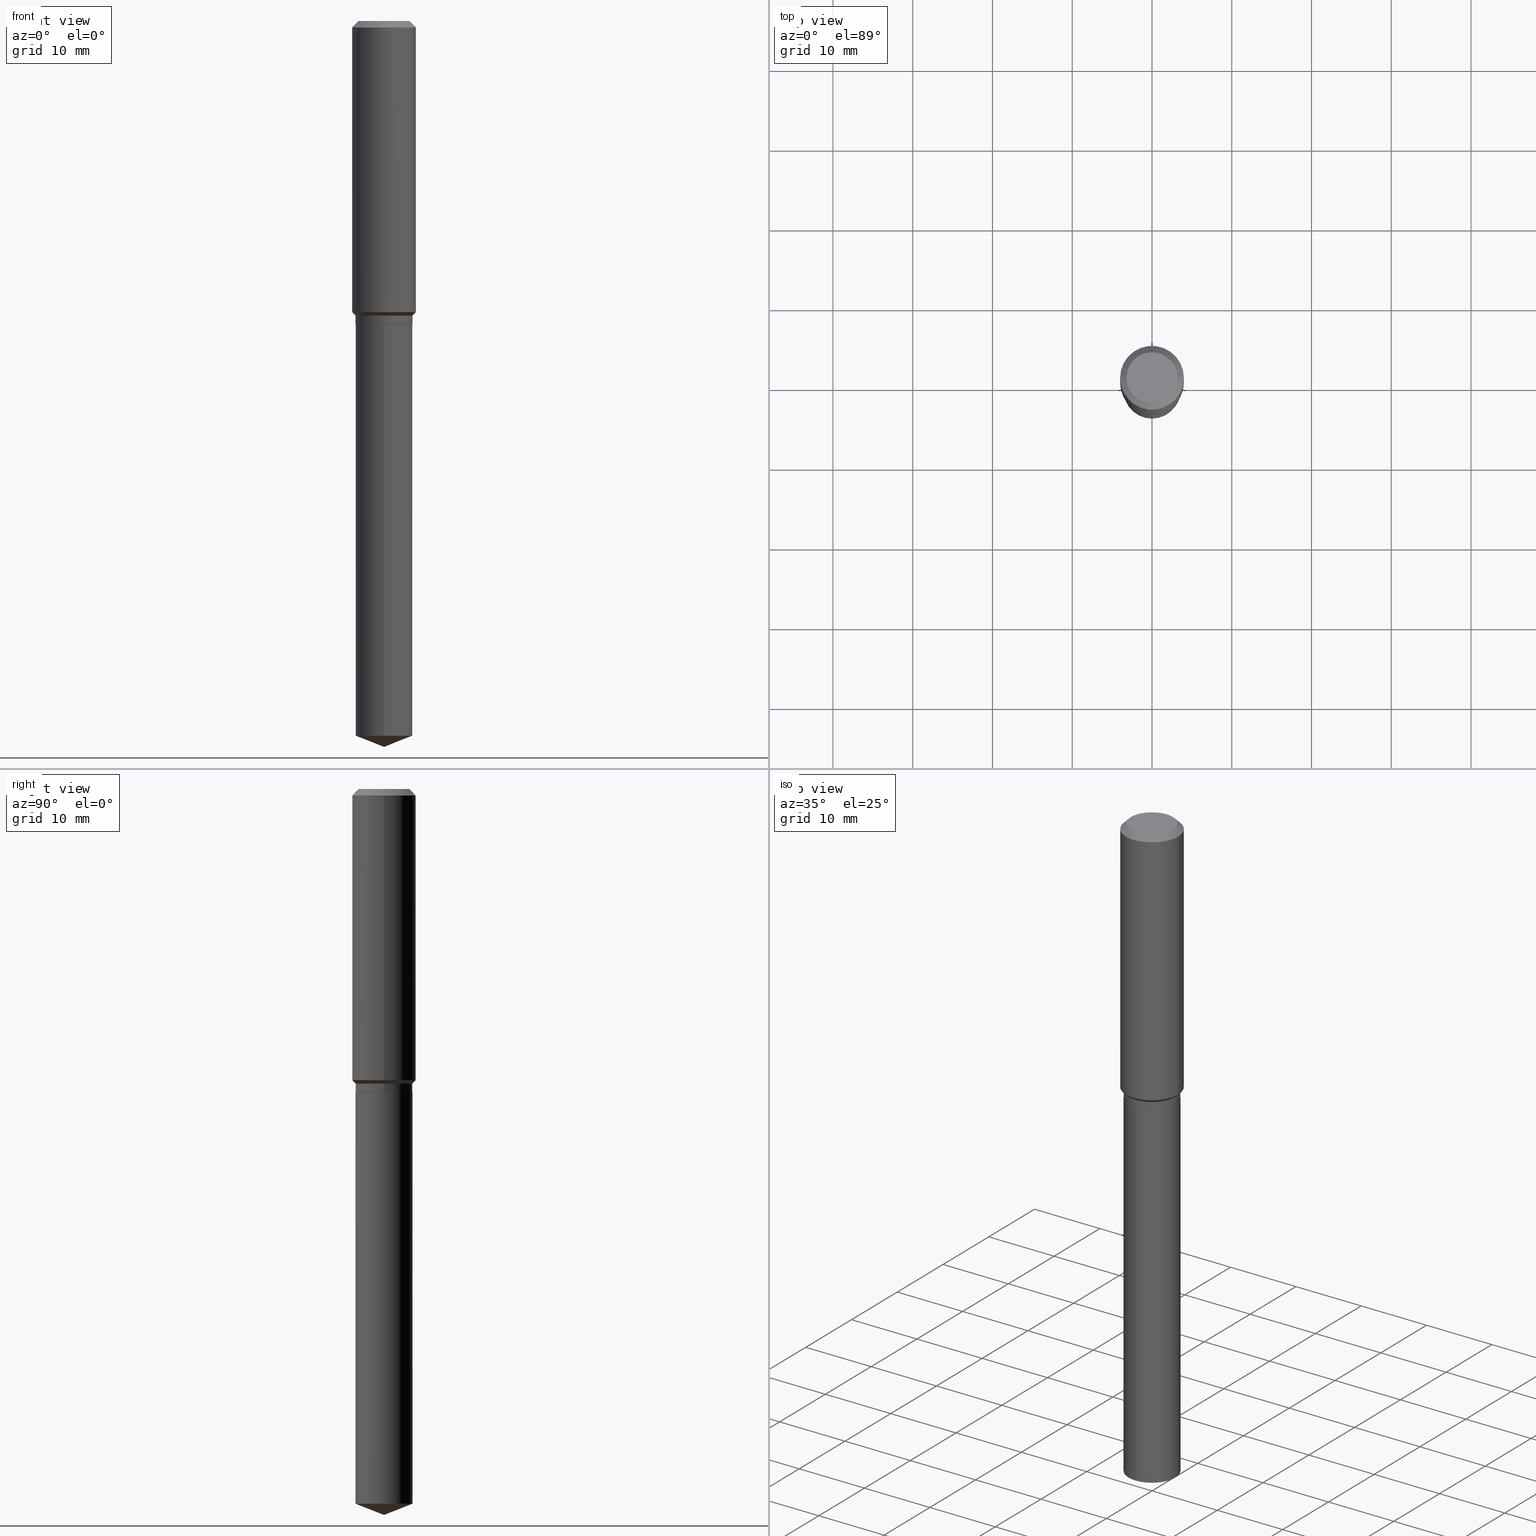
[diagram: canonical four-view strip — front | top / right | iso, engineering-drawing reading convention]
A machine part, canonical four-view strip (front | top / right | iso — engineering-drawing reading convention). The complete STEP part file that produces these views, byte-faithful:
ISO-10303-21;
HEADER;
FILE_DESCRIPTION (( 'STEP AP203' ),
    '1' );
FILE_NAME ('56449.STEP',
    '2024-04-24T17:56:02',
    ( '' ),
    ( '' ),
    'SwSTEP 2.0',
    'SolidWorks 2023',
    '' );
FILE_SCHEMA (( 'CONFIG_CONTROL_DESIGN' ));
ENDSEC;

DATA;
#1 = DIRECTION ( 'NONE',  ( 1.000000000000000000, -6.982962677686265133E-15, 0.000000000000000000 ) ) ;
#2 = EDGE_CURVE ( 'NONE', #156, #122, #186, .T. ) ;
#3 = CARTESIAN_POINT ( 'NONE',  ( 8.762167928049776641E-29, -1.250990145810785612E-14, -3.583000000000000185 ) ) ;
#4 = CONICAL_SURFACE ( 'NONE', #209, 99.94676754583802847, 1.195550537616112852 ) ;
#5 = CALENDAR_DATE ( 2024, 24, 4 ) ;
#6 = FACE_OUTER_BOUND ( 'NONE', #127, .T. ) ;
#7 = EDGE_LOOP ( 'NONE', ( #314, #317, #206 ) ) ;
#8 = COORDINATED_UNIVERSAL_TIME_OFFSET ( 5, 0, .BEHIND. ) ;
#9 = CARTESIAN_POINT ( 'NONE',  ( 0.1575000000000000011, -1.190510096822576026E-15, -0.03150000000000019451 ) ) ;
#10 = ORIENTED_EDGE ( 'NONE', *, *, #55, .F. ) ;
#11 = EDGE_CURVE ( 'NONE', #86, #144, #331, .T. ) ;
#12 = EDGE_CURVE ( 'NONE', #194, #40, #454, .T. ) ;
#13 = FACE_OUTER_BOUND ( 'NONE', #204, .T. ) ;
#14 = VECTOR ( 'NONE', #383, 39.37007874015748143 ) ;
#15 = AXIS2_PLACEMENT_3D ( 'NONE', #169, #92, #434 ) ;
#16 = VERTEX_POINT ( 'NONE', #484 ) ;
#17 = LOCAL_TIME ( 13, 56, 2.000000000000000000, #455 ) ;
#18 = DIRECTION ( 'NONE',  ( -2.445468806185136877E-29, 3.491481338843145188E-15, 1.000000000000000000 ) ) ;
#19 = ORIENTED_EDGE ( 'NONE', *, *, #483, .F. ) ;
#20 = DIRECTION ( 'NONE',  ( -2.445468806185136597E-29, 3.491481338843145583E-15, 1.000000000000000000 ) ) ;
#21 = ORIENTED_EDGE ( 'NONE', *, *, #49, .T. ) ;
#22 = CARTESIAN_POINT ( 'NONE',  ( 3.513894127607422832E-29, -5.016909535783715749E-15, -1.436899999999999844 ) ) ;
#23 = DIRECTION ( 'NONE',  ( -2.445483652818804664E-29, 3.491460077618715012E-15, 1.000000000000000000 ) ) ;
#24 = DIRECTION ( 'NONE',  ( 1.000000000000000000, -6.982962677686265922E-15, 4.876176775795935793E-29 ) ) ;
#25 = PLANE ( 'NONE',  #219 ) ;
#26 = CIRCLE ( 'NONE', #269, 0.1406000000000000028 ) ;
#27 = DATE_AND_TIME ( #249, #328 ) ;
#28 = ORIENTED_EDGE ( 'NONE', *, *, #443, .F. ) ;
#29 = DIRECTION ( 'NONE',  ( 0.7071067811864267805, -2.468850131080992517E-15, 0.7071067811866682540 ) ) ;
#30 = CARTESIAN_POINT ( 'NONE',  ( -0.1406000000000000028, 9.990230864787008809E-16, -6.916022736898397739E-30 ) ) ;
#31 = VECTOR ( 'NONE', #139, 39.37007874015748143 ) ;
#32 = CONICAL_SURFACE ( 'NONE', #96, 99.94676754583802847, 1.195550537616112852 ) ;
#33 = VERTEX_POINT ( 'NONE', #131 ) ;
#34 = CARTESIAN_POINT ( 'NONE',  ( -0.1406000000000000028, -4.150388166114112511E-15, -1.495900000000000230 ) ) ;
#35 = LINE ( 'NONE', #9, #279 ) ;
#36 = CALENDAR_DATE ( 2024, 24, 4 ) ;
#37 = DIRECTION ( 'NONE',  ( -2.445468806185136597E-29, 3.491481338843145583E-15, 1.000000000000000000 ) ) ;
#38 = ORIENTED_EDGE ( 'NONE', *, *, #332, .F. ) ;
#39 = CARTESIAN_POINT ( 'NONE',  ( -8.751673825769712260E-28, 1.249491249005610537E-13, 35.78707874015748303 ) ) ;
#40 = VERTEX_POINT ( 'NONE', #287 ) ;
#41 = CARTESIAN_POINT ( 'NONE',  ( 8.762123495044533825E-29, -1.250996508870033127E-14, -3.583000000000000185 ) ) ;
#42 = ORIENTED_EDGE ( 'NONE', *, *, #272, .F. ) ;
#43 = DIRECTION ( 'NONE',  ( -2.445468806185136597E-29, 3.491481338843145583E-15, 1.000000000000000000 ) ) ;
#44 = AXIS2_PLACEMENT_3D ( 'NONE', #395, #20, #319 ) ;
#45 = ORIENTED_EDGE ( 'NONE', *, *, #441, .F. ) ;
#46 = DIRECTION ( 'NONE',  ( -6.982962677686265133E-15, -1.000000000000000000, 3.885985766236505386E-15 ) ) ;
#47 = ORIENTED_EDGE ( 'NONE', *, *, #443, .T. ) ;
#48 = FACE_OUTER_BOUND ( 'NONE', #7, .T. ) ;
#49 = EDGE_CURVE ( 'NONE', #122, #16, #405, .T. ) ;
#50 = DIRECTION ( 'NONE',  ( 1.000000000000000000, -6.982962677686267499E-15, 0.000000000000000000 ) ) ;
#51 = AXIS2_PLACEMENT_3D ( 'NONE', #274, #93, #236 ) ;
#52 = AXIS2_PLACEMENT_3D ( 'NONE', #324, #295, #99 ) ;
#53 = CYLINDRICAL_SURFACE ( 'NONE', #109, 0.1406000000000000028 ) ;
#54 = ADVANCED_FACE ( 'NONE', ( #107 ), #449, .T. ) ;
#55 = EDGE_CURVE ( 'NONE', #320, #216, #310, .T. ) ;
#56 = DIRECTION ( 'NONE',  ( 6.982962677686265922E-15, 1.000000000000000000, -3.491460077618715012E-15 ) ) ;
#57 = DIRECTION ( 'NONE',  ( 1.000000000000000000, 0.000000000000000000, 0.000000000000000000 ) ) ;
#58 = ORIENTED_EDGE ( 'NONE', *, *, #113, .F. ) ;
#59 = VECTOR ( 'NONE', #183, 39.37007874015748143 ) ;
#60 = CIRCLE ( 'NONE', #254, 0.1575000000000001676 ) ;
#61 = CARTESIAN_POINT ( 'NONE',  ( 3.555222550431951451E-29, -5.075915570410164936E-15, -1.453799999999999981 ) ) ;
#62 = PRODUCT_DEFINITION_FORMATION_WITH_SPECIFIED_SOURCE ( 'ANY', '', #102, .NOT_KNOWN. ) ;
#63 = ORIENTED_EDGE ( 'NONE', *, *, #441, .T. ) ;
#64 = PERSON_AND_ORGANIZATION ( #85, #394 ) ;
#65 = ORIENTED_EDGE ( 'NONE', *, *, #416, .F. ) ;
#66 = EDGE_CURVE ( 'NONE', #86, #306, #325, .T. ) ;
#67 = APPROVAL_DATE_TIME ( #270, #69 ) ;
#68 = ORIENTED_EDGE ( 'NONE', *, *, #143, .T. ) ;
#69 = APPROVAL ( #347, 'UNSPECIFIED' ) ;
#70 = CIRCLE ( 'NONE', #476, 0.1406000000000000028 ) ;
#71 = APPROVAL_DATE_TIME ( #379, #264 ) ;
#72 = AXIS2_PLACEMENT_3D ( 'NONE', #404, #370, #453 ) ;
#73 = FACE_OUTER_BOUND ( 'NONE', #218, .T. ) ;
#74 = CARTESIAN_POINT ( 'NONE',  ( 0.1401000000000000023, -6.202965746588731027E-15, -1.496400000000000396 ) ) ;
#75 = DATE_TIME_ROLE ( 'creation_date' ) ;
#76 = DIRECTION ( 'NONE',  ( 2.445468806185136597E-29, -3.491481338843145583E-15, -1.000000000000000000 ) ) ;
#77 = ORIENTED_EDGE ( 'NONE', *, *, #360, .T. ) ;
#78 = CARTESIAN_POINT ( 'NONE',  ( 3.658176787172346501E-29, -5.222906934775461847E-15, -1.495900000000000230 ) ) ;
#79 = AXIS2_PLACEMENT_3D ( 'NONE', #157, #108, #308 ) ;
#80 = ORIENTED_EDGE ( 'NONE', *, *, #11, .T. ) ;
#81 = CC_DESIGN_PERSON_AND_ORGANIZATION_ASSIGNMENT ( #188, #464, ( #62 ) ) ;
#82 = CYLINDRICAL_SURFACE ( 'NONE', #191, 0.1406000000000000028 ) ;
#83 = ORIENTED_EDGE ( 'NONE', *, *, #153, .F. ) ;
#84 = FACE_OUTER_BOUND ( 'NONE', #358, .T. ) ;
#85 = PERSON ( 'UNSPECIFIED', 'UNSPECIFIED', 'UNSPECIFIED', ('UNSPECIFIED'), ('UNSPECIFIED'), ('UNSPECIFIED') ) ;
#86 = VERTEX_POINT ( 'NONE', #438 ) ;
#87 = CYLINDRICAL_SURFACE ( 'NONE', #44, 0.1406000000000000028 ) ;
#88 = AXIS2_PLACEMENT_3D ( 'NONE', #271, #339, #232 ) ;
#89 = VECTOR ( 'NONE', #18, 39.37007874015748143 ) ;
#90 = ORIENTED_EDGE ( 'NONE', *, *, #12, .T. ) ;
#91 = FACE_OUTER_BOUND ( 'NONE', #292, .T. ) ;
#92 = DIRECTION ( 'NONE',  ( -2.445468806185136597E-29, 3.491481338843145583E-15, 1.000000000000000000 ) ) ;
#93 = DIRECTION ( 'NONE',  ( -2.445468806185136597E-29, 3.491481338843145583E-15, 1.000000000000000000 ) ) ;
#94 = ADVANCED_FACE ( 'NONE', ( #98 ), #248, .F. ) ;
#95 = VECTOR ( 'NONE', #29, 39.37007874015748143 ) ;
#96 = AXIS2_PLACEMENT_3D ( 'NONE', #362, #145, #170 ) ;
#97 = CALENDAR_DATE ( 2024, 24, 4 ) ;
#98 = FACE_OUTER_BOUND ( 'NONE', #473, .T. ) ;
#99 = DIRECTION ( 'NONE',  ( 1.000000000000000000, -6.982962677686265133E-15, 0.000000000000000000 ) ) ;
#100 = ORIENTED_EDGE ( 'NONE', *, *, #124, .T. ) ;
#101 = DIRECTION ( 'NONE',  ( 1.000000000000000000, -6.982962677686266711E-15, 4.876176775795936353E-29 ) ) ;
#102 = PRODUCT ( '56449', '56449', '', ( #448 ) ) ;
#103 = DIRECTION ( 'NONE',  ( -2.438088387897960049E-29, 3.491481338843145188E-15, 1.000000000000000000 ) ) ;
#104 = AXIS2_PLACEMENT_3D ( 'NONE', #288, #212, #57 ) ;
#105 = ORIENTED_EDGE ( 'NONE', *, *, #323, .T. ) ;
#106 = DIRECTION ( 'NONE',  ( -2.445468806185136597E-29, 3.491481338843145583E-15, 1.000000000000000000 ) ) ;
#107 = FACE_OUTER_BOUND ( 'NONE', #482, .T. ) ;
#108 = DIRECTION ( 'NONE',  ( 2.445468806185136597E-29, -3.491481338843145583E-15, -1.000000000000000000 ) ) ;
#109 = AXIS2_PLACEMENT_3D ( 'NONE', #163, #205, #469 ) ;
#110 = DIRECTION ( 'NONE',  ( -1.000000000000000000, 6.982962677686265922E-15, -4.876176775795935793E-29 ) ) ;
#111 = DIRECTION ( 'NONE',  ( -6.982962677686265133E-15, -1.000000000000000000, 3.885985766236505386E-15 ) ) ;
#112 = ADVANCED_FACE ( 'NONE', ( #365 ), #25, .F. ) ;
#113 = EDGE_CURVE ( 'NONE', #306, #376, #426, .T. ) ;
#114 = PERSON_AND_ORGANIZATION ( #85, #394 ) ;
#115 = CARTESIAN_POINT ( 'NONE',  ( -4.719860820353100843E-47, 6.738710358733633822E-33, 1.930043355456229866E-18 ) ) ;
#116 = EDGE_LOOP ( 'NONE', ( #446, #141, #38 ) ) ;
#117 = PRODUCT_RELATED_PRODUCT_CATEGORY ( 'detail', '', ( #102 ) ) ;
#118 = MANIFOLD_SOLID_BREP ( 'Body-Move/Copy2[2]', #120 ) ;
#119 = COORDINATED_UNIVERSAL_TIME_OFFSET ( 5, 0, .BEHIND. ) ;
#120 = CLOSED_SHELL ( 'NONE', ( #415, #240, #403, #490, #421, #54, #488, #447, #171, #112, #470, #296 ) ) ;
#121 = CARTESIAN_POINT ( 'NONE',  ( -0.1401000000000000023, -4.226533075470872562E-15, -1.496400000000000396 ) ) ;
#122 = VERTEX_POINT ( 'NONE', #34 ) ;
#123 = DIRECTION ( 'NONE',  ( 1.000000000000000000, -6.982962677686269077E-15, 0.000000000000000000 ) ) ;
#124 = EDGE_CURVE ( 'NONE', #463, #16, #70, .T. ) ;
#125 = EDGE_LOOP ( 'NONE', ( #65, #179, #47, #45 ) ) ;
#126 = FACE_OUTER_BOUND ( 'NONE', #258, .T. ) ;
#127 = EDGE_LOOP ( 'NONE', ( #197, #451, #309, #396 ) ) ;
#128 = CARTESIAN_POINT ( 'NONE',  ( 3.659399521575439863E-29, -5.224652675444884140E-15, -1.496400000000000396 ) ) ;
#129 = AXIS2_PLACEMENT_3D ( 'NONE', #252, #487, #181 ) ;
#130 = AXIS2_PLACEMENT_3D ( 'NONE', #198, #76, #266 ) ;
#131 = CARTESIAN_POINT ( 'NONE',  ( -0.1575000000000000011, -1.444340790156479211E-15, -0.03150000000000019451 ) ) ;
#132 = CARTESIAN_POINT ( 'NONE',  ( 3.659399521575439863E-29, -5.224652675444884140E-15, -1.496400000000000396 ) ) ;
#133 = CARTESIAN_POINT ( 'NONE',  ( 3.658176787172346501E-29, -5.222906934775461847E-15, -1.495900000000000230 ) ) ;
#134 = APPLICATION_PROTOCOL_DEFINITION ( 'international standard', 'config_control_design', 1994, #351 ) ;
#135 = CIRCLE ( 'NONE', #88, 0.1406000000000000028 ) ;
#136 = VECTOR ( 'NONE', #152, 39.37007874015748143 ) ;
#137 = SECURITY_CLASSIFICATION ( '', '', #147 ) ;
#138 =( CONVERSION_BASED_UNIT ( 'INCH', #480 ) LENGTH_UNIT ( ) NAMED_UNIT ( #406 ) );
#139 = DIRECTION ( 'NONE',  ( -0.7071067811864267805, 7.493145998869918709E-15, 0.7071067811866682540 ) ) ;
#140 = FACE_OUTER_BOUND ( 'NONE', #371, .T. ) ;
#141 = ORIENTED_EDGE ( 'NONE', *, *, #222, .T. ) ;
#142 = PLANE ( 'NONE',  #185 ) ;
#143 = EDGE_CURVE ( 'NONE', #376, #144, #135, .T. ) ;
#144 = VERTEX_POINT ( 'NONE', #344 ) ;
#145 = DIRECTION ( 'NONE',  ( -2.445483652818804664E-29, 3.491460077618715012E-15, 1.000000000000000000 ) ) ;
#146 = CARTESIAN_POINT ( 'NONE',  ( 8.626705502539222610E-29, -1.231656290181708132E-14, -3.527616187128538527 ) ) ;
#147 = SECURITY_CLASSIFICATION_LEVEL ( 'unclassified' ) ;
#148 = DIRECTION ( 'NONE',  ( 1.000000000000000000, -6.982962677686267499E-15, 0.000000000000000000 ) ) ;
#149 = EDGE_CURVE ( 'NONE', #16, #463, #151, .T. ) ;
#150 = CARTESIAN_POINT ( 'NONE',  ( 3.659399521575439863E-29, -5.224652675444884140E-15, -1.496400000000000396 ) ) ;
#151 = CIRCLE ( 'NONE', #408, 0.1406000000000000028 ) ;
#152 = DIRECTION ( 'NONE',  ( -0.7071067811865451302, 2.468850131082231817E-15, -0.7071067811865499042 ) ) ;
#153 = EDGE_CURVE ( 'NONE', #40, #122, #384, .T. ) ;
#154 = PERSON_AND_ORGANIZATION ( #85, #394 ) ;
#155 = DIRECTION ( 'NONE',  ( 1.000000000000000000, -6.982962677686265133E-15, 0.000000000000000000 ) ) ;
#156 = VERTEX_POINT ( 'NONE', #121 ) ;
#157 = CARTESIAN_POINT ( 'NONE',  ( 7.703226739483228723E-31, -1.099816621735597661E-16, -0.03150000000000019451 ) ) ;
#158 = EDGE_LOOP ( 'NONE', ( #231, #77, #239, #374 ) ) ;
#159 = CLOSED_SHELL ( 'NONE', ( #345, #457, #244, #175, #94 ) ) ;
#160 = LINE ( 'NONE', #276, #436 ) ;
#161 = VECTOR ( 'NONE', #226, 39.37007874015748143 ) ;
#162 = ORIENTED_EDGE ( 'NONE', *, *, #259, .T. ) ;
#163 = CARTESIAN_POINT ( 'NONE',  ( 3.659399521575438742E-29, -5.224652675444883351E-15, -1.496400000000000174 ) ) ;
#164 = ORIENTED_EDGE ( 'NONE', *, *, #153, .T. ) ;
#165 = DIRECTION ( 'NONE',  ( -2.445468806185136597E-29, 3.491481338843145583E-15, 1.000000000000000000 ) ) ;
#166 = EDGE_LOOP ( 'NONE', ( #10, #162, #227, #486 ) ) ;
#167 = FACE_OUTER_BOUND ( 'NONE', #385, .T. ) ;
#168 = AXIS2_PLACEMENT_3D ( 'NONE', #440, #281, #46 ) ;
#169 = CARTESIAN_POINT ( 'NONE',  ( 0.000000000000000000, 0.000000000000000000, 0.000000000000000000 ) ) ;
#170 = DIRECTION ( 'NONE',  ( -6.982962677686265922E-15, -1.000000000000000000, 3.498627837350072459E-15 ) ) ;
#171 = ADVANCED_FACE ( 'NONE', ( #6 ), #419, .T. ) ;
#172 = CARTESIAN_POINT ( 'NONE',  ( 7.703226739483228723E-31, -1.099816621735597661E-16, -0.03150000000000019451 ) ) ;
#173 = EDGE_CURVE ( 'NONE', #235, #435, #353, .T. ) ;
#174 = DIRECTION ( 'NONE',  ( -2.445483652818804664E-29, 3.491460077618715012E-15, 1.000000000000000000 ) ) ;
#175 = ADVANCED_FACE ( 'NONE', ( #73 ), #82, .T. ) ;
#176 = AXIS2_PLACEMENT_3D ( 'NONE', #146, #174, #297 ) ;
#177 = CIRCLE ( 'NONE', #237, 0.1401000000000000023 ) ;
#178 = APPROVAL_DATE_TIME ( #27, #267 ) ;
#179 = ORIENTED_EDGE ( 'NONE', *, *, #149, .T. ) ;
#180 = PERSON_AND_ORGANIZATION_ROLE ( 'design_owner' ) ;
#181 = DIRECTION ( 'NONE',  ( 1.000000000000000000, -6.982962677686265922E-15, 4.876281427513067258E-29 ) ) ;
#182 = PERSON_AND_ORGANIZATION_ROLE ( 'creator' ) ;
#183 = DIRECTION ( 'NONE',  ( -2.445468806185136877E-29, 3.491481338843145188E-15, 1.000000000000000000 ) ) ;
#184 = EDGE_CURVE ( 'NONE', #235, #433, #465, .T. ) ;
#185 = AXIS2_PLACEMENT_3D ( 'NONE', #291, #103, #24 ) ;
#186 = LINE ( 'NONE', #217, #31 ) ;
#187 = CARTESIAN_POINT ( 'NONE',  ( 3.555222550431951451E-29, -5.075915570410164936E-15, -1.453799999999999981 ) ) ;
#188 = PERSON_AND_ORGANIZATION ( #85, #394 ) ;
#189 = DIRECTION ( 'NONE',  ( -2.445468806185136597E-29, 3.491481338843145583E-15, 1.000000000000000000 ) ) ;
#190 = SHAPE_DEFINITION_REPRESENTATION ( #214, #193 ) ;
#191 = AXIS2_PLACEMENT_3D ( 'NONE', #381, #348, #111 ) ;
#192 = DIRECTION ( 'NONE',  ( 1.000000000000000000, -6.982962677686265133E-15, 0.000000000000000000 ) ) ;
#193 = ADVANCED_BREP_SHAPE_REPRESENTATION ( '56449', ( #452, #118, #104 ), #312 ) ;
#194 = VERTEX_POINT ( 'NONE', #74 ) ;
#195 = APPROVAL_ROLE ( '' ) ;
#196 = DIRECTION ( 'NONE',  ( -2.445483652818804664E-29, 3.491460077618715012E-15, 1.000000000000000000 ) ) ;
#197 = ORIENTED_EDGE ( 'NONE', *, *, #259, .F. ) ;
#198 = CARTESIAN_POINT ( 'NONE',  ( 7.703226739483228723E-31, -1.099816621735597661E-16, -0.03150000000000019451 ) ) ;
#199 = ORIENTED_EDGE ( 'NONE', *, *, #55, .T. ) ;
#200 = EDGE_CURVE ( 'NONE', #194, #156, #177, .T. ) ;
#201 = DIRECTION ( 'NONE',  ( 1.000000000000000000, -6.982962677686265133E-15, 0.000000000000000000 ) ) ;
#202 = CIRCLE ( 'NONE', #51, 0.1260000000000000009 ) ;
#203 = CONICAL_SURFACE ( 'NONE', #52, 0.1406000000000000028, 0.7853981633974523868 ) ;
#204 = EDGE_LOOP ( 'NONE', ( #388, #265, #83, #367 ) ) ;
#205 = DIRECTION ( 'NONE',  ( -2.445483652818804664E-29, 3.491460077618715012E-15, 1.000000000000000000 ) ) ;
#206 = ORIENTED_EDGE ( 'NONE', *, *, #66, .F. ) ;
#207 = LINE ( 'NONE', #234, #215 ) ;
#208 = DIRECTION ( 'NONE',  ( 1.000000000000000000, -6.982962677686267499E-15, 4.876176775795936353E-29 ) ) ;
#209 = AXIS2_PLACEMENT_3D ( 'NONE', #39, #196, #223 ) ;
#210 = FACE_OUTER_BOUND ( 'NONE', #125, .T. ) ;
#211 = ORIENTED_EDGE ( 'NONE', *, *, #149, .F. ) ;
#212 = DIRECTION ( 'NONE',  ( 0.000000000000000000, 0.000000000000000000, 1.000000000000000000 ) ) ;
#213 = ORIENTED_EDGE ( 'NONE', *, *, #143, .F. ) ;
#214 = PRODUCT_DEFINITION_SHAPE ( 'NONE', 'NONE',  #444 ) ;
#215 = VECTOR ( 'NONE', #437, 39.37007874015748854 ) ;
#216 = VERTEX_POINT ( 'NONE', #458 ) ;
#217 = CARTESIAN_POINT ( 'NONE',  ( -0.1401000000000000023, -4.229182302644984552E-15, -1.496400000000000396 ) ) ;
#218 = EDGE_LOOP ( 'NONE', ( #58, #471, #80, #213 ) ) ;
#219 = AXIS2_PLACEMENT_3D ( 'NONE', #115, #387, #110 ) ;
#220 = AXIS2_PLACEMENT_3D ( 'NONE', #172, #333, #286 ) ;
#221 = LINE ( 'NONE', #380, #136 ) ;
#222 = EDGE_CURVE ( 'NONE', #268, #86, #420, .T. ) ;
#223 = DIRECTION ( 'NONE',  ( -6.982962677686265922E-15, -1.000000000000000000, 3.498627837350072459E-15 ) ) ;
#224 = PERSON_AND_ORGANIZATION_ROLE ( 'creator' ) ;
#225 = APPLICATION_CONTEXT ( 'configuration controlled 3d designs of mechanical parts and assemblies' ) ;
#226 = DIRECTION ( 'NONE',  ( -2.445468806185136877E-29, 3.491481338843145188E-15, 1.000000000000000000 ) ) ;
#227 = ORIENTED_EDGE ( 'NONE', *, *, #485, .T. ) ;
#228 = CIRCLE ( 'NONE', #477, 0.1406000000000000028 ) ;
#229 = FACE_OUTER_BOUND ( 'NONE', #116, .T. ) ;
#230 = LOCAL_TIME ( 13, 56, 2.000000000000000000, #119 ) ;
#231 = ORIENTED_EDGE ( 'NONE', *, *, #173, .T. ) ;
#232 = DIRECTION ( 'NONE',  ( -6.982962677686265133E-15, -1.000000000000000000, 3.885985766236505386E-15 ) ) ;
#233 = ORIENTED_EDGE ( 'NONE', *, *, #354, .T. ) ;
#234 = CARTESIAN_POINT ( 'NONE',  ( 0.1406000000000000028, -6.057720122892853253E-15, -1.453799999999999981 ) ) ;
#235 = VERTEX_POINT ( 'NONE', #341 ) ;
#236 = DIRECTION ( 'NONE',  ( 1.000000000000000000, -6.982962677686265922E-15, 4.876281427513067258E-29 ) ) ;
#237 = AXIS2_PLACEMENT_3D ( 'NONE', #150, #299, #460 ) ;
#238 = LOCAL_TIME ( 13, 56, 2.000000000000000000, #442 ) ;
#239 = ORIENTED_EDGE ( 'NONE', *, *, #485, .F. ) ;
#240 = ADVANCED_FACE ( 'NONE', ( #423 ), #293, .T. ) ;
#241 = CARTESIAN_POINT ( 'NONE',  ( 0.000000000000000000, 0.000000000000000000, 0.000000000000000000 ) ) ;
#242 = CC_DESIGN_DATE_AND_TIME_ASSIGNMENT ( #247, #75, ( #444 ) ) ;
#243 = DIRECTION ( 'NONE',  ( -0.7071067811865503483, 7.493145998870363626E-15, 0.7071067811865445751 ) ) ;
#244 = ADVANCED_FACE ( 'NONE', ( #229 ), #4, .T. ) ;
#245 = DIRECTION ( 'NONE',  ( -6.982962677686265133E-15, -1.000000000000000000, 3.885985766236505386E-15 ) ) ;
#246 = AXIS2_PLACEMENT_3D ( 'NONE', #61, #106, #450 ) ;
#247 = DATE_AND_TIME ( #97, #238 ) ;
#248 = PLANE ( 'NONE',  #300 ) ;
#249 = CALENDAR_DATE ( 2024, 24, 4 ) ;
#250 = CARTESIAN_POINT ( 'NONE',  ( 0.1401000000000000023, -6.202965746588731027E-15, -1.496400000000000396 ) ) ;
#251 = PERSON_AND_ORGANIZATION ( #85, #394 ) ;
#252 = CARTESIAN_POINT ( 'NONE',  ( -9.439721640706201686E-47, 1.347742071746726764E-32, 3.860086710912459732E-18 ) ) ;
#253 = AXIS2_PLACEMENT_3D ( 'NONE', #78, #189, #155 ) ;
#254 = AXIS2_PLACEMENT_3D ( 'NONE', #22, #313, #50 ) ;
#255 = PERSON_AND_ORGANIZATION ( #85, #394 ) ;
#256 = ORIENTED_EDGE ( 'NONE', *, *, #272, .T. ) ;
#257 =( LENGTH_UNIT ( ) NAMED_UNIT ( * ) SI_UNIT ( $, .METRE. ) );
#258 = EDGE_LOOP ( 'NONE', ( #164, #21, #277, #42 ) ) ;
#259 = EDGE_CURVE ( 'NONE', #320, #433, #35, .T. ) ;
#260 = CARTESIAN_POINT ( 'NONE',  ( 0.1406000000000000028, -9.818045524826891058E-16, 6.855904546769086274E-30 ) ) ;
#261 = CONICAL_SURFACE ( 'NONE', #327, 0.1401000000000000023, 0.7853981633972775267 ) ;
#262 = CARTESIAN_POINT ( 'NONE',  ( 0.1575000000000000844, -1.099816621735587677E-15, 7.679978421878603638E-30 ) ) ;
#263 = DIRECTION ( 'NONE',  ( -2.445468806185136597E-29, 3.491481338843145583E-15, 1.000000000000000000 ) ) ;
#264 = APPROVAL ( #302, 'UNSPECIFIED' ) ;
#265 = ORIENTED_EDGE ( 'NONE', *, *, #2, .T. ) ;
#266 = DIRECTION ( 'NONE',  ( -1.000000000000000000, 6.982962677686265922E-15, 0.000000000000000000 ) ) ;
#267 = APPROVAL ( #412, 'UNSPECIFIED' ) ;
#268 = VERTEX_POINT ( 'NONE', #3 ) ;
#269 = AXIS2_PLACEMENT_3D ( 'NONE', #432, #23, #245 ) ;
#270 = DATE_AND_TIME ( #5, #17 ) ;
#271 = CARTESIAN_POINT ( 'NONE',  ( 3.659399521575438742E-29, -5.224652675444883351E-15, -1.496400000000000174 ) ) ;
#272 = EDGE_CURVE ( 'NONE', #40, #463, #456, .T. ) ;
#273 = ORIENTED_EDGE ( 'NONE', *, *, #49, .F. ) ;
#274 = CARTESIAN_POINT ( 'NONE',  ( -9.439721640706201686E-47, 1.347742071746726764E-32, 3.860086710912459732E-18 ) ) ;
#275 = ORIENTED_EDGE ( 'NONE', *, *, #11, .F. ) ;
#276 = CARTESIAN_POINT ( 'NONE',  ( -0.1406000000000000028, -4.076892483931463661E-15, -1.453799999999999981 ) ) ;
#277 = ORIENTED_EDGE ( 'NONE', *, *, #124, .F. ) ;
#278 = CARTESIAN_POINT ( 'NONE',  ( 0.1575000000000000011, -1.209798283909146741E-15, -0.03150000000000019451 ) ) ;
#279 = VECTOR ( 'NONE', #298, 39.37007874015748143 ) ;
#280 = CARTESIAN_POINT ( 'NONE',  ( 0.000000000000000000, 0.000000000000000000, 0.000000000000000000 ) ) ;
#281 = DIRECTION ( 'NONE',  ( -2.445483652818804664E-29, 3.491460077618715012E-15, 1.000000000000000000 ) ) ;
#282 = EDGE_CURVE ( 'NONE', #216, #33, #221, .T. ) ;
#283 = CARTESIAN_POINT ( 'NONE',  ( 0.1260000000000000009, -1.027466422270894443E-15, 3.860086710919128072E-18 ) ) ;
#284 = APPROVAL_ROLE ( '' ) ;
#285 = CIRCLE ( 'NONE', #72, 0.1575000000000000011 ) ;
#286 = DIRECTION ( 'NONE',  ( 1.000000000000000000, -6.982962677686265922E-15, 0.000000000000000000 ) ) ;
#287 = CARTESIAN_POINT ( 'NONE',  ( 0.1406000000000000028, -6.204711487258150953E-15, -1.495900000000000230 ) ) ;
#288 = CARTESIAN_POINT ( 'NONE',  ( 0.000000000000000000, 0.000000000000000000, 0.000000000000000000 ) ) ;
#289 = DIRECTION ( 'NONE',  ( -2.445483652818804384E-29, 3.491460077618715012E-15, 1.000000000000000000 ) ) ;
#290 = EDGE_CURVE ( 'NONE', #268, #306, #303, .T. ) ;
#291 = CARTESIAN_POINT ( 'NONE',  ( 1.621861059190474669E-29, -8.142523723067441994E-15, -1.496400000000000396 ) ) ;
#292 = EDGE_LOOP ( 'NONE', ( #392, #63, #413, #19 ) ) ;
#293 = CONICAL_SURFACE ( 'NONE', #130, 0.1575000000000000011, 0.7853981633974449483 ) ;
#294 = CC_DESIGN_APPROVAL ( #69, ( #62 ) ) ;
#295 = DIRECTION ( 'NONE',  ( -2.445468806185136597E-29, 3.491481338843145583E-15, 1.000000000000000000 ) ) ;
#296 = ADVANCED_FACE ( 'NONE', ( #84 ), #261, .T. ) ;
#297 = DIRECTION ( 'NONE',  ( -6.982962677686265133E-15, -1.000000000000000000, 3.885985766236505386E-15 ) ) ;
#298 = DIRECTION ( 'NONE',  ( 0.7071067811865451302, -7.319954787623248157E-15, -0.7071067811865499042 ) ) ;
#299 = DIRECTION ( 'NONE',  ( -2.445468806185136597E-29, 3.491481338843145583E-15, 1.000000000000000000 ) ) ;
#300 = AXIS2_PLACEMENT_3D ( 'NONE', #402, #326, #56 ) ;
#301 = VECTOR ( 'NONE', #462, 39.37007874015748854 ) ;
#302 = APPROVAL_STATUS ( 'not_yet_approved' ) ;
#303 = LINE ( 'NONE', #439, #411 ) ;
#304 = PERSON_AND_ORGANIZATION ( #85, #394 ) ;
#305 = CARTESIAN_POINT ( 'NONE',  ( 3.513894127607422832E-29, -5.016909535783715749E-15, -1.436899999999999844 ) ) ;
#306 = VERTEX_POINT ( 'NONE', #400 ) ;
#307 = PERSON_AND_ORGANIZATION_ROLE ( 'classification_officer' ) ;
#308 = DIRECTION ( 'NONE',  ( -1.000000000000000000, 6.982962677686265922E-15, 0.000000000000000000 ) ) ;
#309 = ORIENTED_EDGE ( 'NONE', *, *, #282, .T. ) ;
#310 = CIRCLE ( 'NONE', #129, 0.1260000000000000009 ) ;
#311 = AXIS2_PLACEMENT_3D ( 'NONE', #478, #43, #472 ) ;
#312 =( GEOMETRIC_REPRESENTATION_CONTEXT ( 3 ) GLOBAL_UNCERTAINTY_ASSIGNED_CONTEXT ( ( #427 ) ) GLOBAL_UNIT_ASSIGNED_CONTEXT ( ( #138, #373, #364 ) ) REPRESENTATION_CONTEXT ( 'NONE', 'WORKASPACE' ) );
#313 = DIRECTION ( 'NONE',  ( -2.445468806185136597E-29, 3.491481338843145583E-15, 1.000000000000000000 ) ) ;
#314 = ORIENTED_EDGE ( 'NONE', *, *, #222, .F. ) ;
#315 = CYLINDRICAL_SURFACE ( 'NONE', #15, 0.1575000000000000844 ) ;
#316 = EDGE_CURVE ( 'NONE', #122, #40, #228, .T. ) ;
#317 = ORIENTED_EDGE ( 'NONE', *, *, #290, .T. ) ;
#318 = CC_DESIGN_PERSON_AND_ORGANIZATION_ASSIGNMENT ( #255, #180, ( #102 ) ) ;
#319 = DIRECTION ( 'NONE',  ( 1.000000000000000000, -6.982962677686266711E-15, 4.876176775795936353E-29 ) ) ;
#320 = VERTEX_POINT ( 'NONE', #283 ) ;
#321 = LINE ( 'NONE', #357, #89 ) ;
#322 = DIRECTION ( 'NONE',  ( -2.445468806185136597E-29, 3.491481338843145583E-15, 1.000000000000000000 ) ) ;
#323 = EDGE_CURVE ( 'NONE', #156, #194, #343, .T. ) ;
#324 = CARTESIAN_POINT ( 'NONE',  ( 3.555222550431951451E-29, -5.075915570410164936E-15, -1.453799999999999981 ) ) ;
#325 = CIRCLE ( 'NONE', #176, 0.1406000000000000028 ) ;
#326 = DIRECTION ( 'NONE',  ( 2.445483652818804384E-29, -3.491460077618715012E-15, -1.000000000000000000 ) ) ;
#327 = AXIS2_PLACEMENT_3D ( 'NONE', #128, #391, #123 ) ;
#328 = LOCAL_TIME ( 13, 56, 2.000000000000000000, #445 ) ;
#329 = CARTESIAN_POINT ( 'NONE',  ( -9.818045524826524238E-16, -0.1406000000000052208, -1.496399999999999730 ) ) ;
#330 = CARTESIAN_POINT ( 'NONE',  ( 0.1406000000000000028, -6.057720122892853253E-15, -1.453799999999999981 ) ) ;
#331 = LINE ( 'NONE', #329, #342 ) ;
#332 = EDGE_CURVE ( 'NONE', #306, #86, #459, .T. ) ;
#333 = DIRECTION ( 'NONE',  ( -2.445468806185136597E-29, 3.491481338843145583E-15, 1.000000000000000000 ) ) ;
#334 = DIRECTION ( 'NONE',  ( -2.445468806185136597E-29, 3.491481338843145583E-15, 1.000000000000000000 ) ) ;
#335 = CONICAL_SURFACE ( 'NONE', #311, 0.1401000000000000023, 0.7853981633972775267 ) ;
#336 = CONICAL_SURFACE ( 'NONE', #246, 0.1406000000000000028, 0.7853981633974523868 ) ;
#337 = CALENDAR_DATE ( 2024, 24, 4 ) ;
#338 = ORIENTED_EDGE ( 'NONE', *, *, #200, .F. ) ;
#339 = DIRECTION ( 'NONE',  ( -2.445483652818804664E-29, 3.491460077618715012E-15, 1.000000000000000000 ) ) ;
#340 = DATE_AND_TIME ( #337, #230 ) ;
#341 = CARTESIAN_POINT ( 'NONE',  ( 0.1575000000000001676, -6.116726157519303229E-15, -1.436899999999999844 ) ) ;
#342 = VECTOR ( 'NONE', #289, 39.37007874015748143 ) ;
#343 = CIRCLE ( 'NONE', #368, 0.1401000000000000023 ) ;
#344 = CARTESIAN_POINT ( 'NONE',  ( -9.818045524826524238E-16, -0.1406000000000052208, -1.496399999999999730 ) ) ;
#345 = ADVANCED_FACE ( 'NONE', ( #167 ), #53, .T. ) ;
#346 = ORIENTED_EDGE ( 'NONE', *, *, #316, .T. ) ;
#347 = APPROVAL_STATUS ( 'not_yet_approved' ) ;
#348 = DIRECTION ( 'NONE',  ( -2.445483652818804664E-29, 3.491460077618715012E-15, 1.000000000000000000 ) ) ;
#349 = ORIENTED_EDGE ( 'NONE', *, *, #113, .T. ) ;
#350 = FACE_OUTER_BOUND ( 'NONE', #158, .T. ) ;
#351 = APPLICATION_CONTEXT ( 'configuration controlled 3d designs of mechanical parts and assemblies' ) ;
#352 = ORIENTED_EDGE ( 'NONE', *, *, #2, .F. ) ;
#353 = CIRCLE ( 'NONE', #393, 0.1575000000000001676 ) ;
#354 = EDGE_CURVE ( 'NONE', #144, #376, #26, .T. ) ;
#355 = CARTESIAN_POINT ( 'NONE',  ( 9.990230864787874584E-16, 0.1405999999999947847, -1.496400000000000841 ) ) ;
#356 = ORIENTED_EDGE ( 'NONE', *, *, #372, .T. ) ;
#357 = CARTESIAN_POINT ( 'NONE',  ( -0.1575000000000000844, 1.119104808822158392E-15, -7.747322767151481189E-30 ) ) ;
#358 = EDGE_LOOP ( 'NONE', ( #352, #105, #90, #475 ) ) ;
#359 = CYLINDRICAL_SURFACE ( 'NONE', #399, 0.1575000000000000844 ) ;
#360 = EDGE_CURVE ( 'NONE', #435, #33, #321, .T. ) ;
#361 = VECTOR ( 'NONE', #417, 39.37007874015748143 ) ;
#362 = CARTESIAN_POINT ( 'NONE',  ( -8.751673825769712260E-28, 1.249491249005610537E-13, 35.78707874015748303 ) ) ;
#363 = APPROVAL_PERSON_ORGANIZATION ( #114, #264, #382 ) ;
#364 =( NAMED_UNIT ( * ) SI_UNIT ( $, .STERADIAN. ) SOLID_ANGLE_UNIT ( ) );
#365 = FACE_OUTER_BOUND ( 'NONE', #410, .T. ) ;
#366 = APPLICATION_PROTOCOL_DEFINITION ( 'international standard', 'config_control_design', 1994, #225 ) ;
#367 = ORIENTED_EDGE ( 'NONE', *, *, #12, .F. ) ;
#368 = AXIS2_PLACEMENT_3D ( 'NONE', #132, #322, #474 ) ;
#369 = LOCAL_TIME ( 13, 56, 2.000000000000000000, #8 ) ;
#370 = DIRECTION ( 'NONE',  ( -2.445468806185136597E-29, 3.491481338843145583E-15, 1.000000000000000000 ) ) ;
#371 = EDGE_LOOP ( 'NONE', ( #100, #414, #424, #28 ) ) ;
#372 = EDGE_CURVE ( 'NONE', #216, #320, #202, .T. ) ;
#373 =( NAMED_UNIT ( * ) PLANE_ANGLE_UNIT ( ) SI_UNIT ( $, .RADIAN. ) );
#374 = ORIENTED_EDGE ( 'NONE', *, *, #184, .F. ) ;
#375 = DESIGN_CONTEXT ( 'detailed design', #351, 'design' ) ;
#376 = VERTEX_POINT ( 'NONE', #355 ) ;
#377 = CIRCLE ( 'NONE', #220, 0.1575000000000000011 ) ;
#378 = APPROVAL_PERSON_ORGANIZATION ( #154, #69, #195 ) ;
#379 = DATE_AND_TIME ( #36, #369 ) ;
#380 = CARTESIAN_POINT ( 'NONE',  ( -0.1575000000000000011, 9.898349595620272334E-16, -0.03150000000000019451 ) ) ;
#381 = CARTESIAN_POINT ( 'NONE',  ( 3.659399521575438742E-29, -5.224652675444883351E-15, -1.496400000000000174 ) ) ;
#382 = APPROVAL_ROLE ( '' ) ;
#383 = DIRECTION ( 'NONE',  ( -2.445483652818804384E-29, 3.491460077618715012E-15, 1.000000000000000000 ) ) ;
#384 = CIRCLE ( 'NONE', #253, 0.1406000000000000028 ) ;
#385 = EDGE_LOOP ( 'NONE', ( #428, #349, #467, #275 ) ) ;
#386 = CC_DESIGN_APPROVAL ( #267, ( #444 ) ) ;
#387 = DIRECTION ( 'NONE',  ( 2.438088387897960049E-29, -3.491481338843145188E-15, -1.000000000000000000 ) ) ;
#388 = ORIENTED_EDGE ( 'NONE', *, *, #200, .T. ) ;
#389 = DIRECTION ( 'NONE',  ( -2.445468806185136597E-29, 3.491481338843145583E-15, 1.000000000000000000 ) ) ;
#390 = EDGE_LOOP ( 'NONE', ( #338, #431 ) ) ;
#391 = DIRECTION ( 'NONE',  ( -2.445468806185136597E-29, 3.491481338843145583E-15, 1.000000000000000000 ) ) ;
#392 = ORIENTED_EDGE ( 'NONE', *, *, #360, .F. ) ;
#393 = AXIS2_PLACEMENT_3D ( 'NONE', #305, #389, #148 ) ;
#394 = ORGANIZATION ( 'UNSPECIFIED', 'UNSPECIFIED', '' ) ;
#395 = CARTESIAN_POINT ( 'NONE',  ( 0.000000000000000000, 0.000000000000000000, 0.000000000000000000 ) ) ;
#396 = ORIENTED_EDGE ( 'NONE', *, *, #483, .T. ) ;
#397 = DIRECTION ( 'NONE',  ( -2.445468806185136597E-29, 3.491481338843145583E-15, 1.000000000000000000 ) ) ;
#398 = CARTESIAN_POINT ( 'NONE',  ( -0.1575000000000001676, -3.897804726961556568E-15, -1.436899999999999844 ) ) ;
#399 = AXIS2_PLACEMENT_3D ( 'NONE', #241, #397, #208 ) ;
#400 = CARTESIAN_POINT ( 'NONE',  ( 9.990230864787868667E-16, 0.1405999999999876793, -3.527616187128538972 ) ) ;
#401 = CC_DESIGN_DATE_AND_TIME_ASSIGNMENT ( #340, #425, ( #137 ) ) ;
#402 = CARTESIAN_POINT ( 'NONE',  ( 3.659399521575438742E-29, -5.224652675444883351E-15, -1.496400000000000174 ) ) ;
#403 = ADVANCED_FACE ( 'NONE', ( #350 ), #315, .T. ) ;
#404 = CARTESIAN_POINT ( 'NONE',  ( 7.703226739483228723E-31, -1.099816621735597661E-16, -0.03150000000000019451 ) ) ;
#405 = LINE ( 'NONE', #30, #59 ) ;
#406 = DIMENSIONAL_EXPONENTS ( 1.000000000000000000, 0.000000000000000000, 0.000000000000000000, 0.000000000000000000, 0.000000000000000000, 0.000000000000000000, 0.000000000000000000 ) ;
#407 = FACE_OUTER_BOUND ( 'NONE', #390, .T. ) ;
#408 = AXIS2_PLACEMENT_3D ( 'NONE', #187, #263, #1 ) ;
#409 = CC_DESIGN_PERSON_AND_ORGANIZATION_ASSIGNMENT ( #304, #224, ( #62 ) ) ;
#410 = EDGE_LOOP ( 'NONE', ( #356, #199 ) ) ;
#411 = VECTOR ( 'NONE', #479, 39.37007874015748854 ) ;
#412 = APPROVAL_STATUS ( 'not_yet_approved' ) ;
#413 = ORIENTED_EDGE ( 'NONE', *, *, #184, .T. ) ;
#414 = ORIENTED_EDGE ( 'NONE', *, *, #416, .T. ) ;
#415 = ADVANCED_FACE ( 'NONE', ( #13 ), #335, .T. ) ;
#416 = EDGE_CURVE ( 'NONE', #16, #435, #160, .T. ) ;
#417 = DIRECTION ( 'NONE',  ( -2.445468806185136877E-29, 3.491481338843145188E-15, 1.000000000000000000 ) ) ;
#418 = CC_DESIGN_PERSON_AND_ORGANIZATION_ASSIGNMENT ( #461, #307, ( #137 ) ) ;
#419 = CONICAL_SURFACE ( 'NONE', #79, 0.1575000000000000011, 0.7853981633974449483 ) ;
#420 = LINE ( 'NONE', #41, #301 ) ;
#421 = ADVANCED_FACE ( 'NONE', ( #126 ), #87, .T. ) ;
#422 = CC_DESIGN_PERSON_AND_ORGANIZATION_ASSIGNMENT ( #64, #182, ( #444 ) ) ;
#423 = FACE_OUTER_BOUND ( 'NONE', #166, .T. ) ;
#424 = ORIENTED_EDGE ( 'NONE', *, *, #173, .F. ) ;
#425 = DATE_TIME_ROLE ( 'classification_date' ) ;
#426 = LINE ( 'NONE', #489, #14 ) ;
#427 = UNCERTAINTY_MEASURE_WITH_UNIT (LENGTH_MEASURE( 1.000000000000000082E-05 ), #138, 'distance_accuracy_value', 'NONE');
#428 = ORIENTED_EDGE ( 'NONE', *, *, #66, .T. ) ;
#429 = CC_DESIGN_APPROVAL ( #264, ( #137 ) ) ;
#430 = CARTESIAN_POINT ( 'NONE',  ( 3.555222550431951451E-29, -5.075915570410164936E-15, -1.453799999999999981 ) ) ;
#431 = ORIENTED_EDGE ( 'NONE', *, *, #323, .F. ) ;
#432 = CARTESIAN_POINT ( 'NONE',  ( 3.659399521575438742E-29, -5.224652675444883351E-15, -1.496400000000000174 ) ) ;
#433 = VERTEX_POINT ( 'NONE', #278 ) ;
#434 = DIRECTION ( 'NONE',  ( 1.000000000000000000, -6.982962677686267499E-15, 4.876176775795936353E-29 ) ) ;
#435 = VERTEX_POINT ( 'NONE', #398 ) ;
#436 = VECTOR ( 'NONE', #243, 39.37007874015748854 ) ;
#437 = DIRECTION ( 'NONE',  ( 0.7071067811865503483, -2.468850131082286643E-15, 0.7071067811865445751 ) ) ;
#438 = CARTESIAN_POINT ( 'NONE',  ( -9.818045524826025283E-16, -0.1406000000000122707, -3.527616187128538083 ) ) ;
#439 = CARTESIAN_POINT ( 'NONE',  ( 8.762168317674783458E-29, -1.250990145810785612E-14, -3.583000000000000185 ) ) ;
#440 = CARTESIAN_POINT ( 'NONE',  ( 8.626705502539222610E-29, -1.231656290181708132E-14, -3.527616187128538527 ) ) ;
#441 = EDGE_CURVE ( 'NONE', #435, #235, #60, .T. ) ;
#442 = COORDINATED_UNIVERSAL_TIME_OFFSET ( 5, 0, .BEHIND. ) ;
#443 = EDGE_CURVE ( 'NONE', #463, #235, #207, .T. ) ;
#444 = PRODUCT_DEFINITION ( 'UNKNOWN', '', #62, #375 ) ;
#445 = COORDINATED_UNIVERSAL_TIME_OFFSET ( 5, 0, .BEHIND. ) ;
#446 = ORIENTED_EDGE ( 'NONE', *, *, #290, .F. ) ;
#447 = ADVANCED_FACE ( 'NONE', ( #91 ), #359, .T. ) ;
#448 = MECHANICAL_CONTEXT ( 'NONE', #225, 'mechanical' ) ;
#449 = CYLINDRICAL_SURFACE ( 'NONE', #466, 0.1406000000000000028 ) ;
#450 = DIRECTION ( 'NONE',  ( 1.000000000000000000, -6.982962677686265133E-15, 0.000000000000000000 ) ) ;
#451 = ORIENTED_EDGE ( 'NONE', *, *, #372, .F. ) ;
#452 = MANIFOLD_SOLID_BREP ( 'Body-Move/Copy2[1]', #159 ) ;
#453 = DIRECTION ( 'NONE',  ( 1.000000000000000000, -6.982962677686265922E-15, 0.000000000000000000 ) ) ;
#454 = LINE ( 'NONE', #250, #95 ) ;
#455 = COORDINATED_UNIVERSAL_TIME_OFFSET ( 5, 0, .BEHIND. ) ;
#456 = LINE ( 'NONE', #260, #361 ) ;
#457 = ADVANCED_FACE ( 'NONE', ( #48 ), #32, .T. ) ;
#458 = CARTESIAN_POINT ( 'NONE',  ( -0.1260000000000000009, 9.348441284752484904E-16, 3.860086710906114178E-18 ) ) ;
#459 = CIRCLE ( 'NONE', #168, 0.1406000000000000028 ) ;
#460 = DIRECTION ( 'NONE',  ( 1.000000000000000000, -6.982962677686269077E-15, 0.000000000000000000 ) ) ;
#461 = PERSON_AND_ORGANIZATION ( #85, #394 ) ;
#462 = DIRECTION ( 'NONE',  ( -6.497071151882103270E-15, -0.9304175679820221312, 0.3665012267243032418 ) ) ;
#463 = VERTEX_POINT ( 'NONE', #330 ) ;
#464 = PERSON_AND_ORGANIZATION_ROLE ( 'design_supplier' ) ;
#465 = LINE ( 'NONE', #262, #161 ) ;
#466 = AXIS2_PLACEMENT_3D ( 'NONE', #280, #334, #101 ) ;
#467 = ORIENTED_EDGE ( 'NONE', *, *, #354, .F. ) ;
#468 = APPROVAL_PERSON_ORGANIZATION ( #251, #267, #284 ) ;
#469 = DIRECTION ( 'NONE',  ( -6.982962677686265133E-15, -1.000000000000000000, 3.885985766236505386E-15 ) ) ;
#470 = ADVANCED_FACE ( 'NONE', ( #407 ), #142, .F. ) ;
#471 = ORIENTED_EDGE ( 'NONE', *, *, #332, .T. ) ;
#472 = DIRECTION ( 'NONE',  ( 1.000000000000000000, -6.982962677686269077E-15, 0.000000000000000000 ) ) ;
#473 = EDGE_LOOP ( 'NONE', ( #233, #68 ) ) ;
#474 = DIRECTION ( 'NONE',  ( 1.000000000000000000, -6.982962677686269077E-15, 0.000000000000000000 ) ) ;
#475 = ORIENTED_EDGE ( 'NONE', *, *, #316, .F. ) ;
#476 = AXIS2_PLACEMENT_3D ( 'NONE', #430, #37, #192 ) ;
#477 = AXIS2_PLACEMENT_3D ( 'NONE', #133, #165, #201 ) ;
#478 = CARTESIAN_POINT ( 'NONE',  ( 3.659399521575439863E-29, -5.224652675444884140E-15, -1.496400000000000396 ) ) ;
#479 = DIRECTION ( 'NONE',  ( 6.611014441532049234E-15, 0.9304175679820246847, 0.3665012267242966360 ) ) ;
#480 = LENGTH_MEASURE_WITH_UNIT ( LENGTH_MEASURE( 0.02539999999999999897 ), #257 );
#481 = CC_DESIGN_SECURITY_CLASSIFICATION ( #137, ( #62 ) ) ;
#482 = EDGE_LOOP ( 'NONE', ( #273, #346, #256, #211 ) ) ;
#483 = EDGE_CURVE ( 'NONE', #33, #433, #377, .T. ) ;
#484 = CARTESIAN_POINT ( 'NONE',  ( -0.1406000000000000028, -4.150388166114112511E-15, -1.453799999999999981 ) ) ;
#485 = EDGE_CURVE ( 'NONE', #433, #33, #285, .T. ) ;
#486 = ORIENTED_EDGE ( 'NONE', *, *, #282, .F. ) ;
#487 = DIRECTION ( 'NONE',  ( -2.445468806185136597E-29, 3.491481338843145583E-15, 1.000000000000000000 ) ) ;
#488 = ADVANCED_FACE ( 'NONE', ( #210 ), #203, .T. ) ;
#489 = CARTESIAN_POINT ( 'NONE',  ( 9.990230864787373657E-16, 0.1405999999999947847, -1.496400000000000841 ) ) ;
#490 = ADVANCED_FACE ( 'NONE', ( #140 ), #336, .T. ) ;
ENDSEC;
END-ISO-10303-21;
